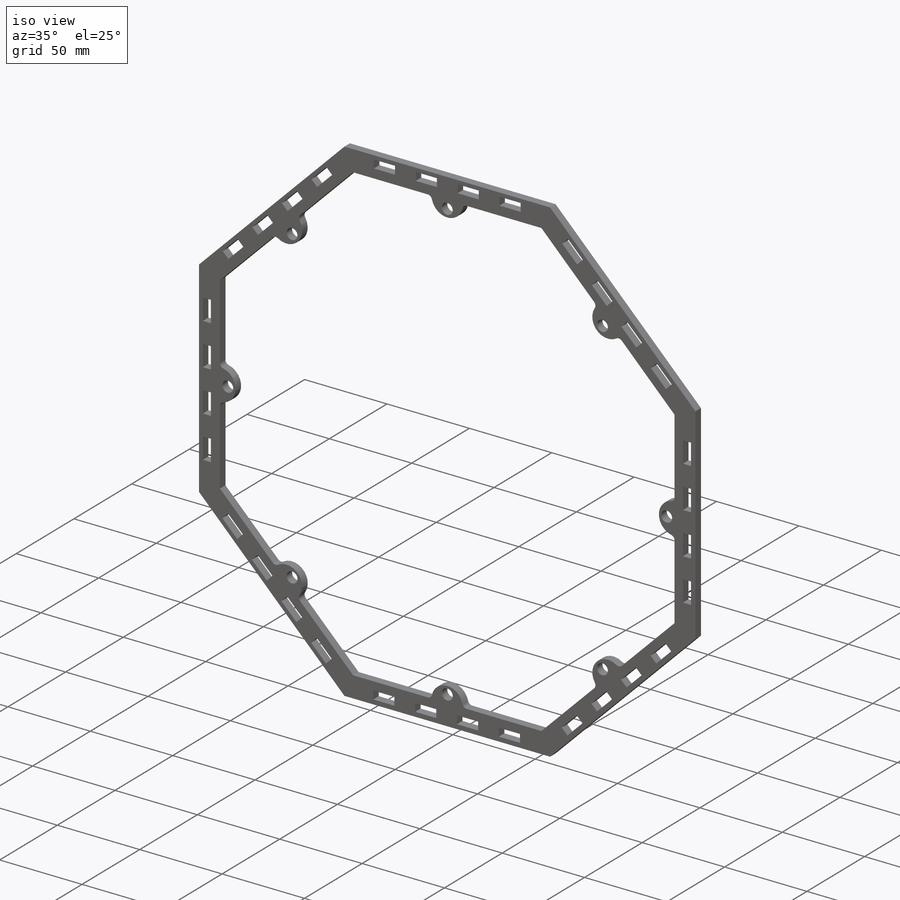
[diagram: iso view]
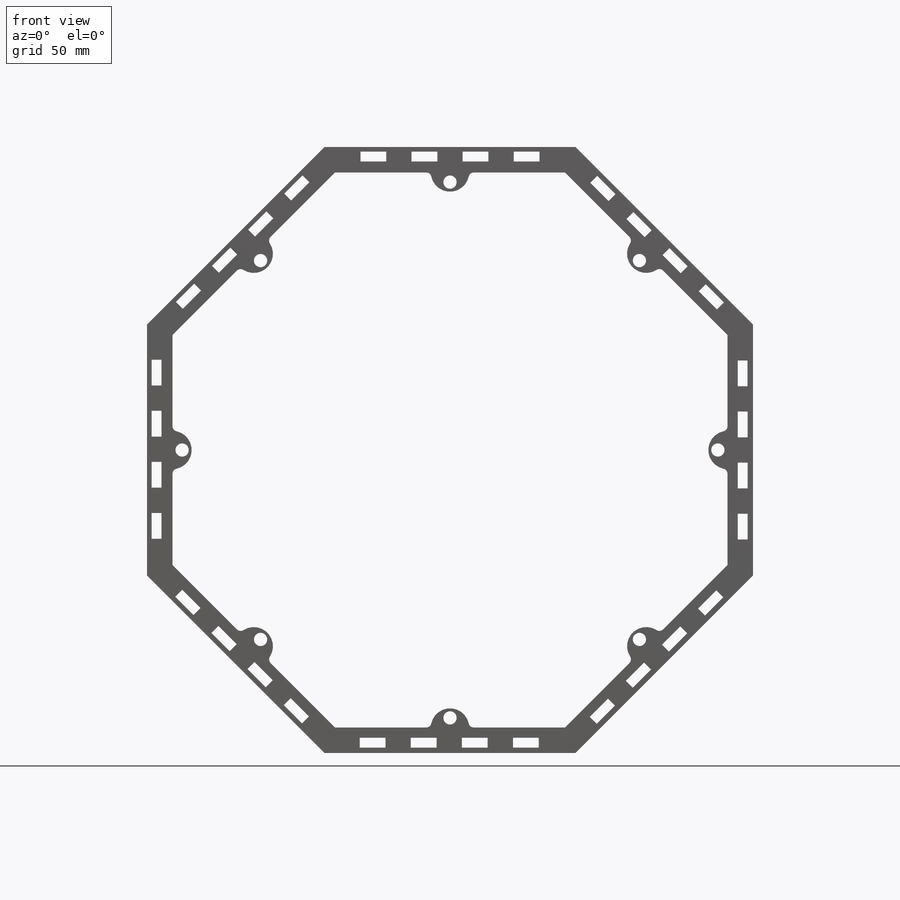
[diagram: front view]
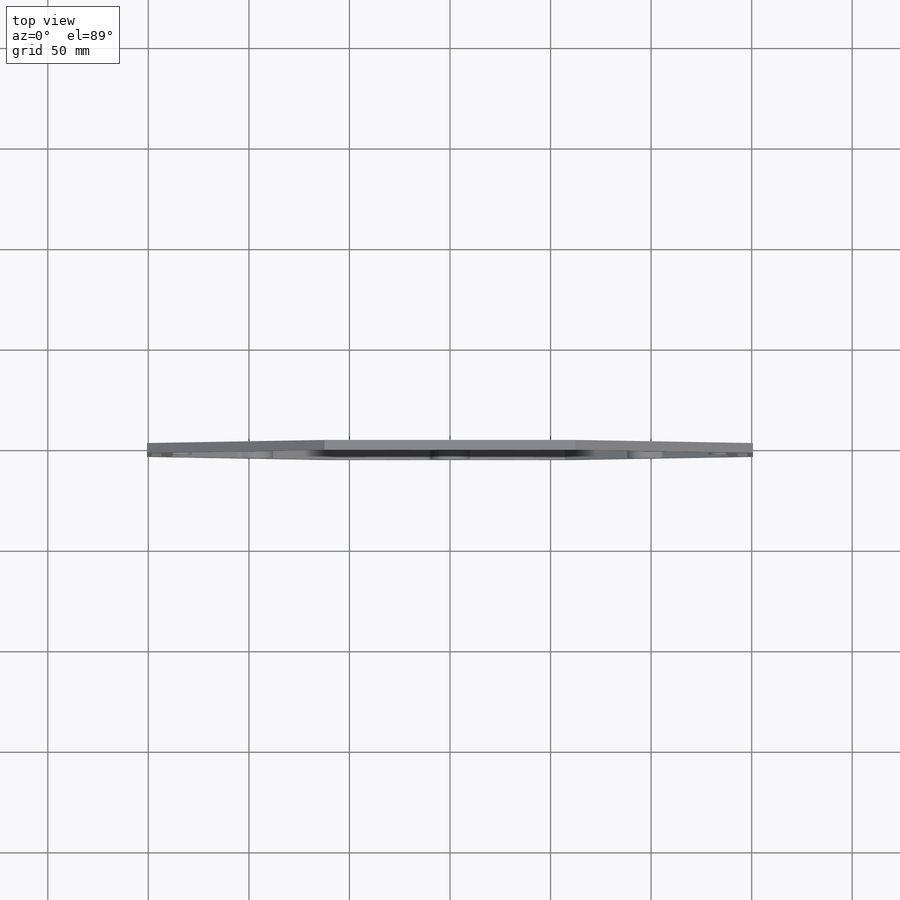
[diagram: top view]
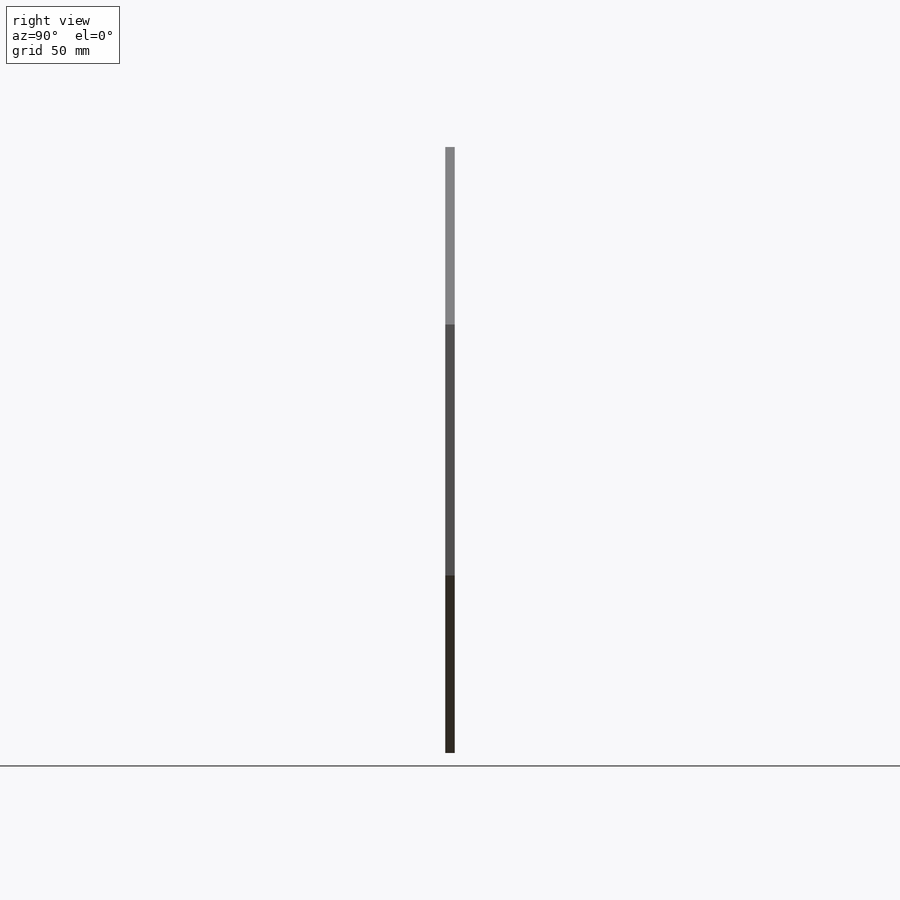
[diagram: right view]
SOLIDWORKS PART (.sldprt)
format: sldprt  version: not decoded by parser v0  size: 1,500,672 bytes
history: native  units: mm
features: sketch x5, extrude x3, material x1, cut_extrude x1 (+11 scaffold rows collapsed)
feature tree (21):
  scaffold x11  (default folders/planes/origin — collapsed)
  material  "6061-T6 (SS)"
  sketch  "Sketch1"  dims[c1.D2=~284.012352mm c1.D1=114.3mm c2.D2=12.7mm]
  extrude  "Boss-Extrude1"  Depth=4.7625mm
  sketch  "Sketch2"  dims[D1=9.525mm D2=6.604mm D3=9.525mm D4=9.525mm D5=6.604mm D6=4.7625mm]
  extrude  "Boss-Extrude2"  Depth=4.7625mm
  sketch  "Sketch3"  dims[c1.D1=4.7625mm c1.D2=12.7mm c1.D3=12.7mm c1.D4=12.7mm c1.D5=4.7625mm c1.D6=4.7625mm c1.D7=~15.340436mm c2.D1=4.7625mm c2.D2=12.7mm c2.D3=19.05mm c2.D4=4.7625mm c2.D5=12.7mm c2.D6=25.4mm c2.D7=4.7625mm c2.D8=25.4mm c2.D9=12.7mm c2.D10=4.7625mm c2.D11=12.7mm c2.D12=25.4mm c3.D4=50.8mm c3.D6=12.7mm c3.D8=12.7mm c3.D10=4.7625mm c3.D11=4.7625mm c3.D12=12.7mm c3.D13=50.8mm c3.D5=7.9375mm c3.D15=7.9375mm c3.D16=114.3mm c4.D4=25.4mm c4.D13=25.4mm c4.D17=34.925mm c4.D12=25.4mm c5.D17=19.05mm c5.D14=8.0]
  cut_extrude  "Panel Slots"  [1 undecoded]
  sketch  "Sketch4"
  sketch  "Sketch5"  dims[c1.D4=6.35mm c1.D1=70.0deg c2.D1=76.2mm c2.D2=2.54mm c2.D3=2.54mm c3.D2=6.35mm c3.D3=6.35mm]
  extrude  "Boss-Extrude5"  Depth=4.7625mm
decode coverage: 7 of 9 modeling features carry decoded parameters
note: ~ marks probable driven/reference dimensions
note: 1 parameter value undecoded
note: suppression state not decoded; provenance and decode notes live in map.json
